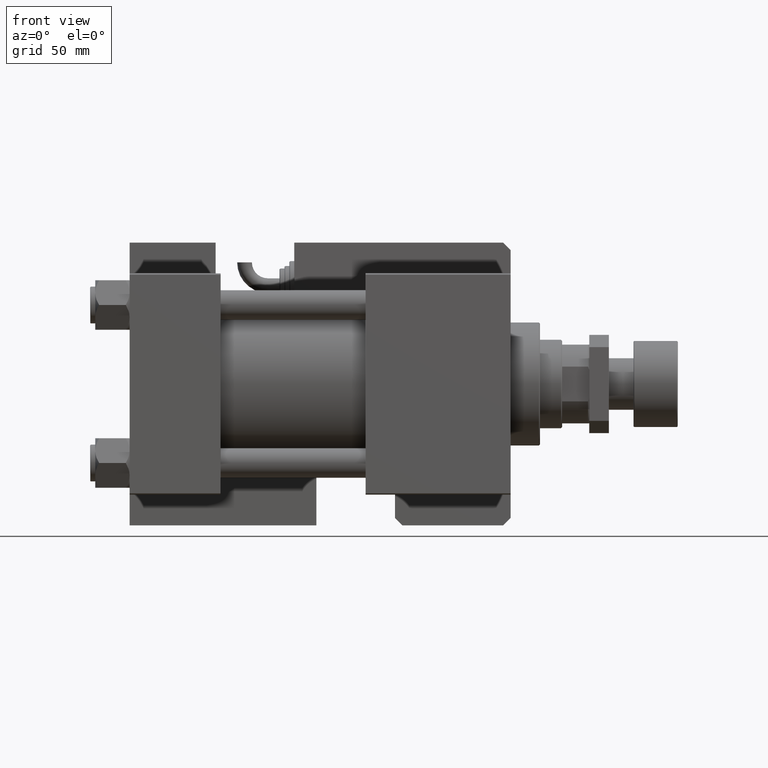
[diagram: clean part render]
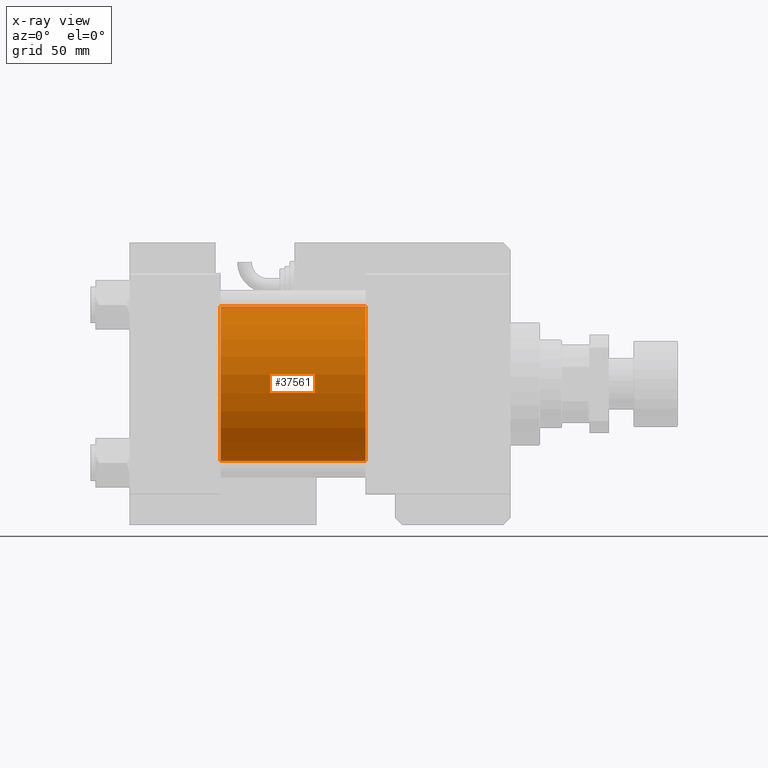
[diagram: x-ray — body ghosted, one internal face saturated and labeled with its STEP entity id]
A machine part, front view, then the same camera in x-ray: the body is ghosted and one INTERNAL B-rep face — a face not visible from any outside direction — is saturated and labeled: STEP entity #37561.
In plain terms, the highlighted cylindrical surface (partial cylindrical patch) has radius 31.5 mm, axis along (-1, -0, -0).
Its self-contained STEP definition (entity closure, byte-faithful):
#3391 = DIRECTION ( 'NONE',  ( 0.000000000000000000, 0.000000000000000000, -1.000000000000000000 ) ) ;
#5648 = CARTESIAN_POINT ( 'NONE',  ( 96.00000000000000000, -2.602085213965210642E-15, 31.50000000000000000 ) ) ;
#8034 = CARTESIAN_POINT ( 'NONE',  ( 96.00000000000000000, -2.602085213965210642E-15, 31.50000000000000000 ) ) ;
#8240 = DIRECTION ( 'NONE',  ( 0.000000000000000000, 0.000000000000000000, -1.000000000000000000 ) ) ;
#10399 = VERTEX_POINT ( 'NONE', #37878 ) ;
#10835 = CARTESIAN_POINT ( 'NONE',  ( 96.00000000000000000, -2.602085213965210642E-15, 0.000000000000000000 ) ) ;
#12704 = VERTEX_POINT ( 'NONE', #53974 ) ;
#13459 = DIRECTION ( 'NONE',  ( -1.000000000000000000, -0.000000000000000000, -0.000000000000000000 ) ) ;
#14947 = DIRECTION ( 'NONE',  ( -1.000000000000000000, -0.000000000000000000, -0.000000000000000000 ) ) ;
#21226 = CARTESIAN_POINT ( 'NONE',  ( 37.00000000000000000, -2.602085213965210642E-15, 31.50000000000000000 ) ) ;
#23505 = CARTESIAN_POINT ( 'NONE',  ( 96.00000000000000000, 1.255552203348951850E-15, -31.50000000000000000 ) ) ;
#24494 = EDGE_LOOP ( 'NONE', ( #39199, #50207, #46952, #36458 ) ) ;
#28229 = DIRECTION ( 'NONE',  ( 1.000000000000000000, 0.000000000000000000, 0.000000000000000000 ) ) ;
#30732 = EDGE_CURVE ( 'NONE', #35318, #12704, #46031, .T. ) ;
#35249 = AXIS2_PLACEMENT_3D ( 'NONE', #51686, #43123, #46558 ) ;
#35318 = VERTEX_POINT ( 'NONE', #21226 ) ;
#36458 = ORIENTED_EDGE ( 'NONE', *, *, #40474, .F. ) ;
#37561 = ADVANCED_FACE ( 'NONE', ( #55133 ), #50855, .F. ) ;
#37878 = CARTESIAN_POINT ( 'NONE',  ( 96.00000000000000000, 1.255552203348951850E-15, -31.50000000000000000 ) ) ;
#39199 = ORIENTED_EDGE ( 'NONE', *, *, #50598, .T. ) ;
#40474 = EDGE_CURVE ( 'NONE', #41293, #35318, #47103, .T. ) ;
#40520 = AXIS2_PLACEMENT_3D ( 'NONE', #10835, #28229, #3391 ) ;
#41293 = VERTEX_POINT ( 'NONE', #5648 ) ;
#42060 = VECTOR ( 'NONE', #14947, 1000.000000000000000 ) ;
#43123 = DIRECTION ( 'NONE',  ( -1.000000000000000000, -0.000000000000000000, -0.000000000000000000 ) ) ;
#43802 = EDGE_CURVE ( 'NONE', #10399, #12704, #46280, .T. ) ;
#46031 = CIRCLE ( 'NONE', #53338, 31.50000000000000000 ) ;
#46280 = LINE ( 'NONE', #23505, #42060 ) ;
#46558 = DIRECTION ( 'NONE',  ( 0.000000000000000000, 0.000000000000000000, 1.000000000000000000 ) ) ;
#46952 = ORIENTED_EDGE ( 'NONE', *, *, #30732, .F. ) ;
#47103 = LINE ( 'NONE', #8034, #49947 ) ;
#49947 = VECTOR ( 'NONE', #13459, 1000.000000000000000 ) ;
#50207 = ORIENTED_EDGE ( 'NONE', *, *, #43802, .T. ) ;
#50598 = EDGE_CURVE ( 'NONE', #41293, #10399, #51451, .T. ) ;
#50855 = CYLINDRICAL_SURFACE ( 'NONE', #35249, 31.50000000000000000 ) ;
#51451 = CIRCLE ( 'NONE', #40520, 31.50000000000000000 ) ;
#51686 = CARTESIAN_POINT ( 'NONE',  ( 96.00000000000000000, -2.602085213965210642E-15, 0.000000000000000000 ) ) ;
#51863 = CARTESIAN_POINT ( 'NONE',  ( 37.00000000000000000, -2.602085213965210642E-15, 0.000000000000000000 ) ) ;
#52147 = DIRECTION ( 'NONE',  ( 1.000000000000000000, 0.000000000000000000, 0.000000000000000000 ) ) ;
#53338 = AXIS2_PLACEMENT_3D ( 'NONE', #51863, #52147, #8240 ) ;
#53974 = CARTESIAN_POINT ( 'NONE',  ( 37.00000000000000000, 1.255552203348951850E-15, -31.50000000000000000 ) ) ;
#55133 = FACE_OUTER_BOUND ( 'NONE', #24494, .T. ) ;